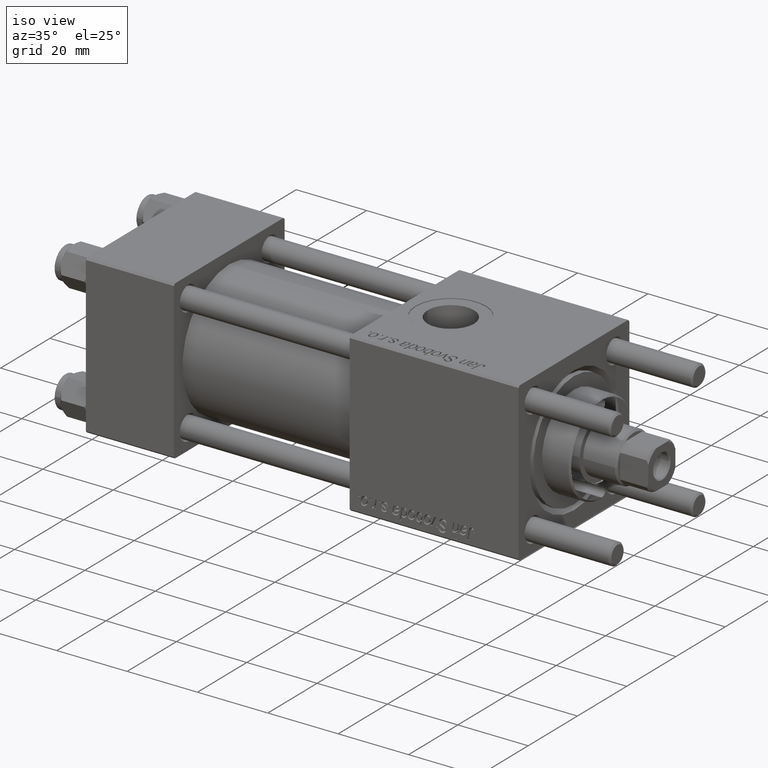
[diagram: clean part render]
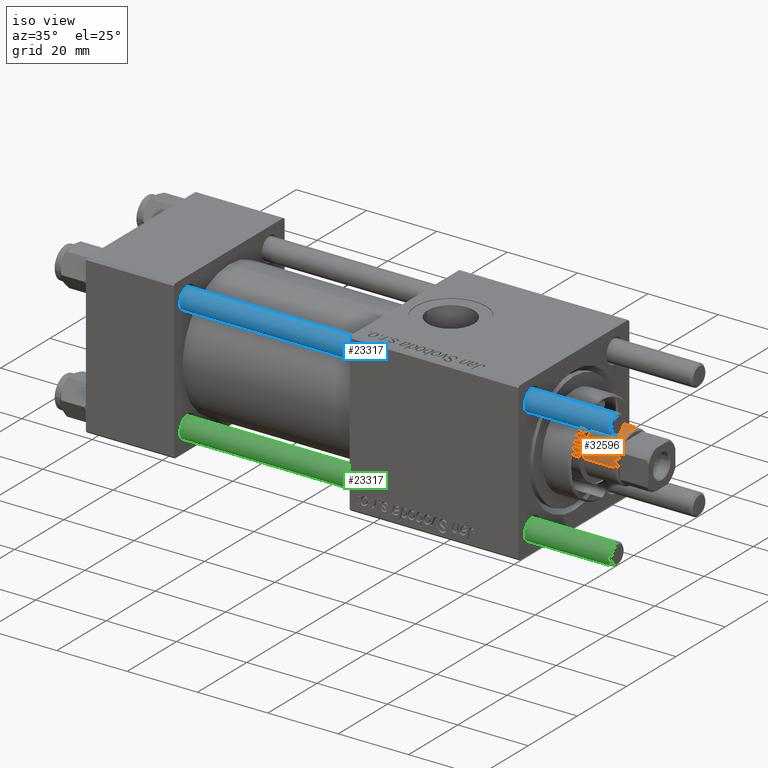
[diagram: same view with three faces highlighted in distinct colors, each labeled with its STEP entity id]
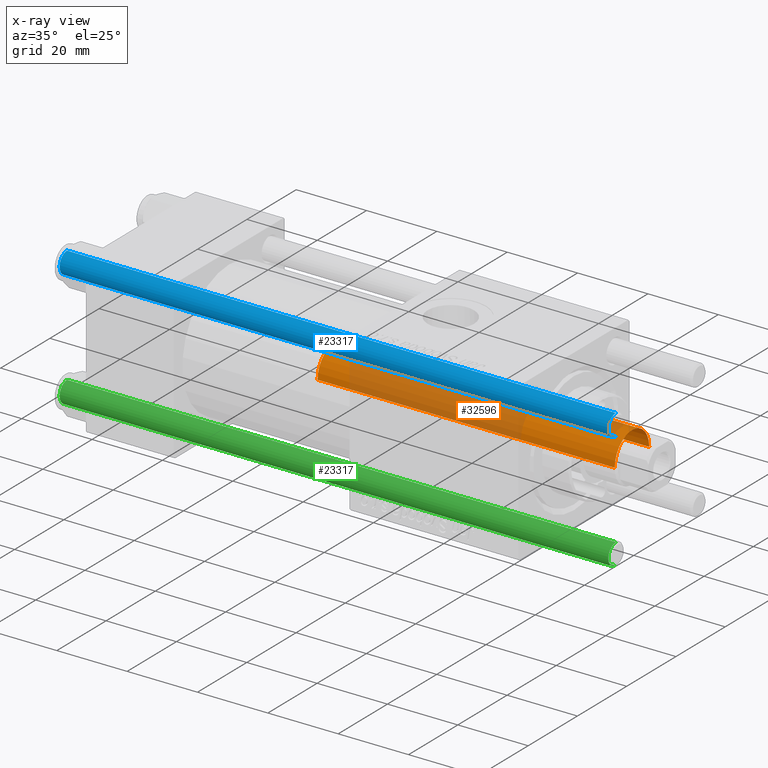
[diagram: x-ray of the same camera — body ghosted, the three highlighted faces saturated]
A machine part, iso view with three faces highlighted in distinct colors.
The next image is the same camera in x-ray (body ghosted, the three faces saturated) — at least one of them is partly hidden behind the body in this view.
Their STEP definitions:

[orange] entity #32596 — the highlighted cylindrical surface (edge-blend (fillet) strip) has radius 7 mm, axis along (-1, 0, 0).
#630 = CARTESIAN_POINT ( 'NONE',  ( 0.000000000000000000, 0.000000000000000000, 115.0000000000000000 ) ) ;
#809 = VECTOR ( 'NONE', #39125, 1000.000000000000000 ) ;
#3371 = AXIS2_PLACEMENT_3D ( 'NONE', #11428, #15997, #28685 ) ;
#6105 = CYLINDRICAL_SURFACE ( 'NONE', #53211, 7.000000000000000000 ) ;
#7809 = CARTESIAN_POINT ( 'NONE',  ( 7.000000000000000000, 8.572527594031473190E-16, 30.00000000000000000 ) ) ;
#9047 = ORIENTED_EDGE ( 'NONE', *, *, #27494, .T. ) ;
#11428 = CARTESIAN_POINT ( 'NONE',  ( 0.000000000000000000, 0.000000000000000000, 30.00000000000000000 ) ) ;
#13871 = DIRECTION ( 'NONE',  ( -1.000000000000000000, 0.000000000000000000, 0.000000000000000000 ) ) ;
#14066 = ORIENTED_EDGE ( 'NONE', *, *, #21685, .T. ) ;
#14791 = ORIENTED_EDGE ( 'NONE', *, *, #33417, .F. ) ;
#15844 = CARTESIAN_POINT ( 'NONE',  ( -7.000000000000000000, 0.000000000000000000, 115.0000000000000000 ) ) ;
#15997 = DIRECTION ( 'NONE',  ( 0.000000000000000000, 0.000000000000000000, 1.000000000000000000 ) ) ;
#16296 = CARTESIAN_POINT ( 'NONE',  ( -7.000000000000000000, 0.000000000000000000, 30.00000000000000000 ) ) ;
#19228 = CARTESIAN_POINT ( 'NONE',  ( 7.000000000000000000, 8.572527594031473190E-16, 114.4999999999999858 ) ) ;
#19408 = EDGE_CURVE ( 'NONE', #29293, #30222, #45633, .T. ) ;
#20778 = AXIS2_PLACEMENT_3D ( 'NONE', #45240, #36284, #53588 ) ;
#21464 = EDGE_LOOP ( 'NONE', ( #14791, #45718, #9047, #14066 ) ) ;
#21685 = EDGE_CURVE ( 'NONE', #44591, #32791, #31858, .T. ) ;
#23651 = DIRECTION ( 'NONE',  ( -0.000000000000000000, -0.000000000000000000, -1.000000000000000000 ) ) ;
#27494 = EDGE_CURVE ( 'NONE', #30222, #44591, #47239, .T. ) ;
#28685 = DIRECTION ( 'NONE',  ( 1.000000000000000000, 0.000000000000000000, 0.000000000000000000 ) ) ;
#29293 = VERTEX_POINT ( 'NONE', #19228 ) ;
#30222 = VERTEX_POINT ( 'NONE', #55247 ) ;
#31858 = CIRCLE ( 'NONE', #3371, 7.000000000000000000 ) ;
#32596 = ADVANCED_FACE ( 'NONE', ( #36311 ), #6105, .T. ) ;
#32791 = VERTEX_POINT ( 'NONE', #7809 ) ;
#33417 = EDGE_CURVE ( 'NONE', #29293, #32791, #39411, .T. ) ;
#35061 = CARTESIAN_POINT ( 'NONE',  ( 7.000000000000000000, 8.572527594031473190E-16, 115.0000000000000000 ) ) ;
#36284 = DIRECTION ( 'NONE',  ( 0.000000000000000000, 0.000000000000000000, -1.000000000000000000 ) ) ;
#36311 = FACE_OUTER_BOUND ( 'NONE', #21464, .T. ) ;
#39125 = DIRECTION ( 'NONE',  ( -0.000000000000000000, -0.000000000000000000, -1.000000000000000000 ) ) ;
#39411 = LINE ( 'NONE', #35061, #809 ) ;
#44591 = VERTEX_POINT ( 'NONE', #16296 ) ;
#45240 = CARTESIAN_POINT ( 'NONE',  ( 0.000000000000000000, 0.000000000000000000, 114.4999999999999858 ) ) ;
#45633 = CIRCLE ( 'NONE', #20778, 7.000000000000000000 ) ;
#45718 = ORIENTED_EDGE ( 'NONE', *, *, #19408, .T. ) ;
#47239 = LINE ( 'NONE', #15844, #51376 ) ;
#51376 = VECTOR ( 'NONE', #51839, 1000.000000000000000 ) ;
#51839 = DIRECTION ( 'NONE',  ( -0.000000000000000000, -0.000000000000000000, -1.000000000000000000 ) ) ;
#53211 = AXIS2_PLACEMENT_3D ( 'NONE', #630, #23651, #13871 ) ;
#53588 = DIRECTION ( 'NONE',  ( 1.000000000000000000, 0.000000000000000000, 0.000000000000000000 ) ) ;
#55247 = CARTESIAN_POINT ( 'NONE',  ( -7.000000000000000000, 0.000000000000000000, 114.4999999999999858 ) ) ;

[blue] entity #23317 — the highlighted cylindrical surface (edge-blend (fillet) strip) has radius 3 mm, axis along (-1, 0, -0).
#2417 = DIRECTION ( 'NONE',  ( -0.000000000000000000, -0.000000000000000000, -1.000000000000000000 ) ) ;
#6151 = CIRCLE ( 'NONE', #9847, 3.000000000000000444 ) ;
#7112 = EDGE_CURVE ( 'NONE', #38751, #15587, #46487, .T. ) ;
#9847 = AXIS2_PLACEMENT_3D ( 'NONE', #19321, #27955, #36887 ) ;
#14677 = DIRECTION ( 'NONE',  ( -0.000000000000000000, -0.000000000000000000, -1.000000000000000000 ) ) ;
#15587 = VERTEX_POINT ( 'NONE', #51477 ) ;
#17424 = ORIENTED_EDGE ( 'NONE', *, *, #7112, .T. ) ;
#18174 = CIRCLE ( 'NONE', #36607, 3.000000000000000444 ) ;
#18974 = DIRECTION ( 'NONE',  ( -1.000000000000000000, 0.000000000000000000, 0.000000000000000000 ) ) ;
#19273 = FACE_OUTER_BOUND ( 'NONE', #32867, .T. ) ;
#19321 = CARTESIAN_POINT ( 'NONE',  ( 0.000000000000000000, 0.000000000000000000, 0.4999999999999726885 ) ) ;
#23317 = ADVANCED_FACE ( 'NONE', ( #19273 ), #37125, .T. ) ;
#23673 = AXIS2_PLACEMENT_3D ( 'NONE', #53844, #14677, #18974 ) ;
#24589 = CARTESIAN_POINT ( 'NONE',  ( 3.000000000000000444, 3.673940397442060361E-16, 157.0000000000000000 ) ) ;
#25208 = EDGE_CURVE ( 'NONE', #25898, #38751, #18174, .T. ) ;
#25571 = CARTESIAN_POINT ( 'NONE',  ( 3.000000000000000444, 3.673940397442060361E-16, 156.5000000000000284 ) ) ;
#25682 = CARTESIAN_POINT ( 'NONE',  ( 0.000000000000000000, 0.000000000000000000, 156.5000000000000284 ) ) ;
#25898 = VERTEX_POINT ( 'NONE', #47153 ) ;
#27220 = EDGE_CURVE ( 'NONE', #25898, #37781, #32608, .T. ) ;
#27955 = DIRECTION ( 'NONE',  ( -0.000000000000000000, -0.000000000000000000, 1.000000000000000000 ) ) ;
#28970 = CARTESIAN_POINT ( 'NONE',  ( -3.000000000000000444, 0.000000000000000000, 0.4999999999999726885 ) ) ;
#29279 = VECTOR ( 'NONE', #2417, 1000.000000000000000 ) ;
#29407 = ORIENTED_EDGE ( 'NONE', *, *, #27220, .F. ) ;
#30542 = DIRECTION ( 'NONE',  ( 1.000000000000000000, 0.000000000000000000, 0.000000000000000000 ) ) ;
#31082 = VECTOR ( 'NONE', #46777, 1000.000000000000000 ) ;
#32608 = LINE ( 'NONE', #45326, #29279 ) ;
#32867 = EDGE_LOOP ( 'NONE', ( #43667, #17424, #41927, #29407 ) ) ;
#36607 = AXIS2_PLACEMENT_3D ( 'NONE', #25682, #38639, #30542 ) ;
#36887 = DIRECTION ( 'NONE',  ( 1.000000000000000000, 0.000000000000000000, 0.000000000000000000 ) ) ;
#37125 = CYLINDRICAL_SURFACE ( 'NONE', #23673, 3.000000000000000444 ) ;
#37781 = VERTEX_POINT ( 'NONE', #28970 ) ;
#38639 = DIRECTION ( 'NONE',  ( 0.000000000000000000, 0.000000000000000000, -1.000000000000000000 ) ) ;
#38751 = VERTEX_POINT ( 'NONE', #25571 ) ;
#41927 = ORIENTED_EDGE ( 'NONE', *, *, #51863, .T. ) ;
#43667 = ORIENTED_EDGE ( 'NONE', *, *, #25208, .T. ) ;
#45326 = CARTESIAN_POINT ( 'NONE',  ( -3.000000000000000444, 0.000000000000000000, 157.0000000000000000 ) ) ;
#46487 = LINE ( 'NONE', #24589, #31082 ) ;
#46777 = DIRECTION ( 'NONE',  ( -0.000000000000000000, -0.000000000000000000, -1.000000000000000000 ) ) ;
#47153 = CARTESIAN_POINT ( 'NONE',  ( -3.000000000000000444, 0.000000000000000000, 156.5000000000000284 ) ) ;
#51477 = CARTESIAN_POINT ( 'NONE',  ( 3.000000000000000444, 3.673940397442060361E-16, 0.4999999999999726885 ) ) ;
#51863 = EDGE_CURVE ( 'NONE', #15587, #37781, #6151, .T. ) ;
#53844 = CARTESIAN_POINT ( 'NONE',  ( 0.000000000000000000, 0.000000000000000000, 157.0000000000000000 ) ) ;

[green] entity #23317 — the highlighted cylindrical surface (edge-blend (fillet) strip) has radius 3 mm, axis along (1, 0, 0).
#2417 = DIRECTION ( 'NONE',  ( -0.000000000000000000, -0.000000000000000000, -1.000000000000000000 ) ) ;
#6151 = CIRCLE ( 'NONE', #9847, 3.000000000000000444 ) ;
#7112 = EDGE_CURVE ( 'NONE', #38751, #15587, #46487, .T. ) ;
#9847 = AXIS2_PLACEMENT_3D ( 'NONE', #19321, #27955, #36887 ) ;
#14677 = DIRECTION ( 'NONE',  ( -0.000000000000000000, -0.000000000000000000, -1.000000000000000000 ) ) ;
#15587 = VERTEX_POINT ( 'NONE', #51477 ) ;
#17424 = ORIENTED_EDGE ( 'NONE', *, *, #7112, .T. ) ;
#18174 = CIRCLE ( 'NONE', #36607, 3.000000000000000444 ) ;
#18974 = DIRECTION ( 'NONE',  ( -1.000000000000000000, 0.000000000000000000, 0.000000000000000000 ) ) ;
#19273 = FACE_OUTER_BOUND ( 'NONE', #32867, .T. ) ;
#19321 = CARTESIAN_POINT ( 'NONE',  ( 0.000000000000000000, 0.000000000000000000, 0.4999999999999726885 ) ) ;
#23317 = ADVANCED_FACE ( 'NONE', ( #19273 ), #37125, .T. ) ;
#23673 = AXIS2_PLACEMENT_3D ( 'NONE', #53844, #14677, #18974 ) ;
#24589 = CARTESIAN_POINT ( 'NONE',  ( 3.000000000000000444, 3.673940397442060361E-16, 157.0000000000000000 ) ) ;
#25208 = EDGE_CURVE ( 'NONE', #25898, #38751, #18174, .T. ) ;
#25571 = CARTESIAN_POINT ( 'NONE',  ( 3.000000000000000444, 3.673940397442060361E-16, 156.5000000000000284 ) ) ;
#25682 = CARTESIAN_POINT ( 'NONE',  ( 0.000000000000000000, 0.000000000000000000, 156.5000000000000284 ) ) ;
#25898 = VERTEX_POINT ( 'NONE', #47153 ) ;
#27220 = EDGE_CURVE ( 'NONE', #25898, #37781, #32608, .T. ) ;
#27955 = DIRECTION ( 'NONE',  ( -0.000000000000000000, -0.000000000000000000, 1.000000000000000000 ) ) ;
#28970 = CARTESIAN_POINT ( 'NONE',  ( -3.000000000000000444, 0.000000000000000000, 0.4999999999999726885 ) ) ;
#29279 = VECTOR ( 'NONE', #2417, 1000.000000000000000 ) ;
#29407 = ORIENTED_EDGE ( 'NONE', *, *, #27220, .F. ) ;
#30542 = DIRECTION ( 'NONE',  ( 1.000000000000000000, 0.000000000000000000, 0.000000000000000000 ) ) ;
#31082 = VECTOR ( 'NONE', #46777, 1000.000000000000000 ) ;
#32608 = LINE ( 'NONE', #45326, #29279 ) ;
#32867 = EDGE_LOOP ( 'NONE', ( #43667, #17424, #41927, #29407 ) ) ;
#36607 = AXIS2_PLACEMENT_3D ( 'NONE', #25682, #38639, #30542 ) ;
#36887 = DIRECTION ( 'NONE',  ( 1.000000000000000000, 0.000000000000000000, 0.000000000000000000 ) ) ;
#37125 = CYLINDRICAL_SURFACE ( 'NONE', #23673, 3.000000000000000444 ) ;
#37781 = VERTEX_POINT ( 'NONE', #28970 ) ;
#38639 = DIRECTION ( 'NONE',  ( 0.000000000000000000, 0.000000000000000000, -1.000000000000000000 ) ) ;
#38751 = VERTEX_POINT ( 'NONE', #25571 ) ;
#41927 = ORIENTED_EDGE ( 'NONE', *, *, #51863, .T. ) ;
#43667 = ORIENTED_EDGE ( 'NONE', *, *, #25208, .T. ) ;
#45326 = CARTESIAN_POINT ( 'NONE',  ( -3.000000000000000444, 0.000000000000000000, 157.0000000000000000 ) ) ;
#46487 = LINE ( 'NONE', #24589, #31082 ) ;
#46777 = DIRECTION ( 'NONE',  ( -0.000000000000000000, -0.000000000000000000, -1.000000000000000000 ) ) ;
#47153 = CARTESIAN_POINT ( 'NONE',  ( -3.000000000000000444, 0.000000000000000000, 156.5000000000000284 ) ) ;
#51477 = CARTESIAN_POINT ( 'NONE',  ( 3.000000000000000444, 3.673940397442060361E-16, 0.4999999999999726885 ) ) ;
#51863 = EDGE_CURVE ( 'NONE', #15587, #37781, #6151, .T. ) ;
#53844 = CARTESIAN_POINT ( 'NONE',  ( 0.000000000000000000, 0.000000000000000000, 157.0000000000000000 ) ) ;